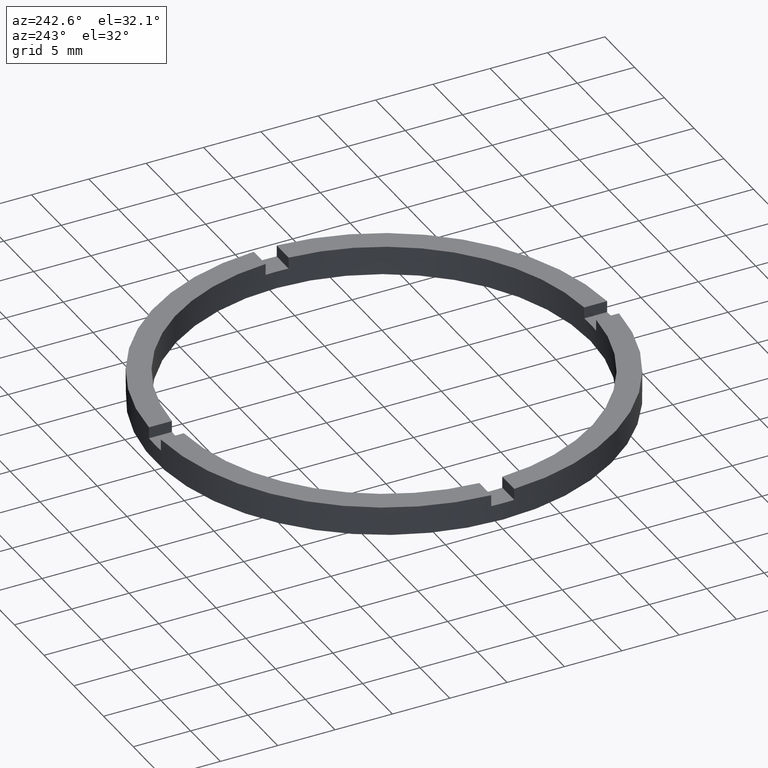
[diagram: clean part render]
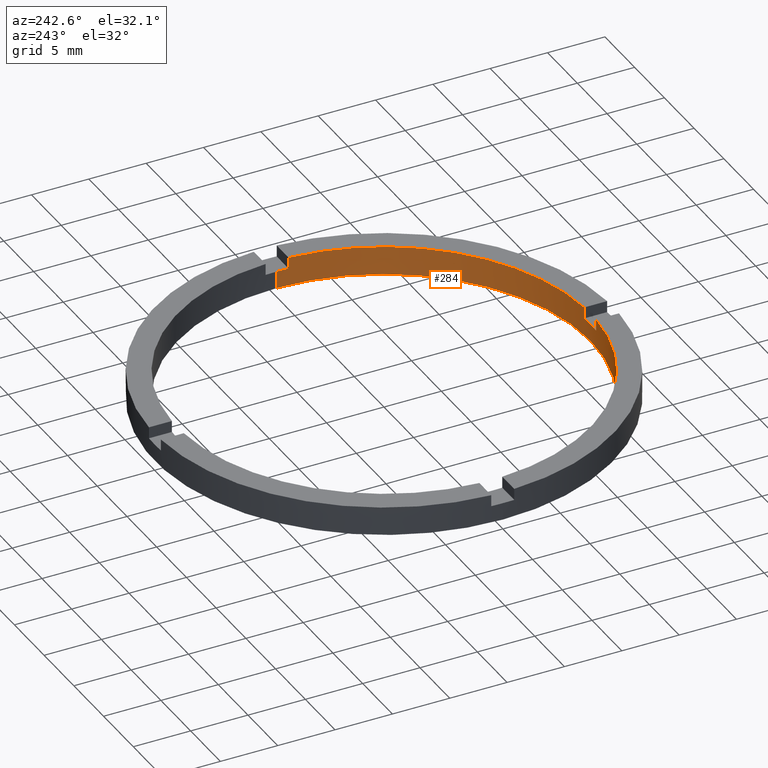
[diagram: same view with one face highlighted and labeled with its STEP entity id]
A machine part, auxiliary view. The second image highlights one B-rep face of the part: STEP entity #284.
In plain terms, the highlighted cylindrical surface (partial cylindrical patch) has radius 18 mm, axis along (-0, -0, -1).
Its self-contained STEP definition (entity closure, byte-faithful):
#10 = EDGE_CURVE ( 'NONE', #456, #740, #348, .T. ) ;
#17 = ORIENTED_EDGE ( 'NONE', *, *, #79, .F. ) ;
#29 = AXIS2_PLACEMENT_3D ( 'NONE', #415, #651, #95 ) ;
#32 = CARTESIAN_POINT ( 'NONE',  ( -1.000000000000160760, -17.97220075561141783, 2.500000000000000000 ) ) ;
#33 = DIRECTION ( 'NONE',  ( 1.000000000000000000, 0.000000000000000000, 0.000000000000000000 ) ) ;
#40 = CARTESIAN_POINT ( 'NONE',  ( 0.9999999999998393507, -17.97220075561143560, 1.500000000000000000 ) ) ;
#42 = CARTESIAN_POINT ( 'NONE',  ( -17.97220075561142849, -1.000000000000025313, 2.500000000000000000 ) ) ;
#69 = DIRECTION ( 'NONE',  ( -0.000000000000000000, -0.000000000000000000, -1.000000000000000000 ) ) ;
#79 = EDGE_CURVE ( 'NONE', #740, #223, #89, .T. ) ;
#86 = VECTOR ( 'NONE', #323, 1000.000000000000000 ) ;
#89 = CIRCLE ( 'NONE', #515, 18.00000000000000000 ) ;
#92 = VECTOR ( 'NONE', #220, 1000.000000000000000 ) ;
#95 = DIRECTION ( 'NONE',  ( 1.000000000000000000, 0.000000000000000000, 0.000000000000000000 ) ) ;
#98 = CARTESIAN_POINT ( 'NONE',  ( 0.000000000000000000, 0.000000000000000000, 2.500000000000000000 ) ) ;
#102 = ORIENTED_EDGE ( 'NONE', *, *, #10, .F. ) ;
#109 = ORIENTED_EDGE ( 'NONE', *, *, #352, .T. ) ;
#110 = CARTESIAN_POINT ( 'NONE',  ( 0.9999999999998393507, -17.97220075561143560, 2.500000000000000000 ) ) ;
#115 = DIRECTION ( 'NONE',  ( -1.000000000000000000, 0.000000000000000000, 0.000000000000000000 ) ) ;
#129 = EDGE_CURVE ( 'NONE', #209, #431, #609, .T. ) ;
#138 = VECTOR ( 'NONE', #340, 1000.000000000000000 ) ;
#152 = EDGE_CURVE ( 'NONE', #214, #435, #616, .T. ) ;
#156 = CARTESIAN_POINT ( 'NONE',  ( 0.000000000000000000, 0.000000000000000000, 2.500000000000000000 ) ) ;
#159 = LINE ( 'NONE', #318, #403 ) ;
#165 = DIRECTION ( 'NONE',  ( -0.000000000000000000, -0.000000000000000000, -1.000000000000000000 ) ) ;
#170 = CARTESIAN_POINT ( 'NONE',  ( 0.000000000000000000, 0.000000000000000000, 1.500000000000000000 ) ) ;
#172 = VERTEX_POINT ( 'NONE', #481 ) ;
#175 = VERTEX_POINT ( 'NONE', #110 ) ;
#179 = EDGE_LOOP ( 'NONE', ( #540, #109, #17, #102, #480, #212, #273, #541, #563, #384, #285, #283 ) ) ;
#192 = CARTESIAN_POINT ( 'NONE',  ( -18.00000000000000000, 0.000000000000000000, 0.000000000000000000 ) ) ;
#209 = VERTEX_POINT ( 'NONE', #306 ) ;
#212 = ORIENTED_EDGE ( 'NONE', *, *, #152, .F. ) ;
#214 = VERTEX_POINT ( 'NONE', #353 ) ;
#220 = DIRECTION ( 'NONE',  ( -0.000000000000000000, -0.000000000000000000, -1.000000000000000000 ) ) ;
#223 = VERTEX_POINT ( 'NONE', #603 ) ;
#234 = AXIS2_PLACEMENT_3D ( 'NONE', #170, #483, #531 ) ;
#240 = CARTESIAN_POINT ( 'NONE',  ( -18.00000000000000000, 0.000000000000000000, 2.500000000000000000 ) ) ;
#242 = DIRECTION ( 'NONE',  ( 0.000000000000000000, 0.000000000000000000, 1.000000000000000000 ) ) ;
#252 = CARTESIAN_POINT ( 'NONE',  ( 17.97220075561141783, -1.000000000000157208, 2.500000000000000000 ) ) ;
#273 = ORIENTED_EDGE ( 'NONE', *, *, #299, .T. ) ;
#283 = ORIENTED_EDGE ( 'NONE', *, *, #129, .F. ) ;
#284 = ADVANCED_FACE ( 'NONE', ( #346 ), #619, .F. ) ;
#285 = ORIENTED_EDGE ( 'NONE', *, *, #327, .T. ) ;
#292 = CARTESIAN_POINT ( 'NONE',  ( -1.000000000000160760, -17.97220075561141783, 2.500000000000000000 ) ) ;
#299 = EDGE_CURVE ( 'NONE', #214, #488, #375, .T. ) ;
#306 = CARTESIAN_POINT ( 'NONE',  ( 17.97220075561141783, -1.000000000000157208, 1.500000000000000000 ) ) ;
#318 = CARTESIAN_POINT ( 'NONE',  ( 0.9999999999998393507, -17.97220075561143560, 2.500000000000000000 ) ) ;
#323 = DIRECTION ( 'NONE',  ( -0.000000000000000000, -0.000000000000000000, -1.000000000000000000 ) ) ;
#327 = EDGE_CURVE ( 'NONE', #175, #431, #632, .T. ) ;
#328 = DIRECTION ( 'NONE',  ( 0.000000000000000000, 0.000000000000000000, 1.000000000000000000 ) ) ;
#334 = EDGE_CURVE ( 'NONE', #175, #552, #159, .T. ) ;
#340 = DIRECTION ( 'NONE',  ( 0.000000000000000000, 0.000000000000000000, 1.000000000000000000 ) ) ;
#342 = AXIS2_PLACEMENT_3D ( 'NONE', #729, #242, #737 ) ;
#346 = FACE_OUTER_BOUND ( 'NONE', #179, .T. ) ;
#348 = LINE ( 'NONE', #240, #86 ) ;
#352 = EDGE_CURVE ( 'NONE', #172, #223, #436, .T. ) ;
#353 = CARTESIAN_POINT ( 'NONE',  ( -17.97220075561142849, -1.000000000000025313, 2.500000000000000000 ) ) ;
#375 = CIRCLE ( 'NONE', #464, 18.00000000000000000 ) ;
#382 = AXIS2_PLACEMENT_3D ( 'NONE', #98, #165, #115 ) ;
#384 = ORIENTED_EDGE ( 'NONE', *, *, #334, .F. ) ;
#392 = EDGE_CURVE ( 'NONE', #751, #552, #419, .T. ) ;
#396 = LINE ( 'NONE', #292, #138 ) ;
#403 = VECTOR ( 'NONE', #69, 1000.000000000000000 ) ;
#406 = VECTOR ( 'NONE', #584, 1000.000000000000000 ) ;
#414 = EDGE_CURVE ( 'NONE', #751, #488, #396, .T. ) ;
#415 = CARTESIAN_POINT ( 'NONE',  ( 0.000000000000000000, 0.000000000000000000, 1.500000000000000000 ) ) ;
#419 = CIRCLE ( 'NONE', #29, 18.00000000000000000 ) ;
#424 = CIRCLE ( 'NONE', #654, 18.00000000000000000 ) ;
#428 = EDGE_CURVE ( 'NONE', #209, #172, #681, .T. ) ;
#431 = VERTEX_POINT ( 'NONE', #647 ) ;
#435 = VERTEX_POINT ( 'NONE', #714 ) ;
#436 = LINE ( 'NONE', #634, #406 ) ;
#451 = DIRECTION ( 'NONE',  ( 1.000000000000000000, 0.000000000000000000, 0.000000000000000000 ) ) ;
#456 = VERTEX_POINT ( 'NONE', #549 ) ;
#464 = AXIS2_PLACEMENT_3D ( 'NONE', #156, #542, #652 ) ;
#480 = ORIENTED_EDGE ( 'NONE', *, *, #583, .T. ) ;
#481 = CARTESIAN_POINT ( 'NONE',  ( 18.00000000000000000, 2.204364238465235428E-15, 1.500000000000000000 ) ) ;
#483 = DIRECTION ( 'NONE',  ( 0.000000000000000000, 0.000000000000000000, 1.000000000000000000 ) ) ;
#488 = VERTEX_POINT ( 'NONE', #32 ) ;
#515 = AXIS2_PLACEMENT_3D ( 'NONE', #562, #604, #451 ) ;
#531 = DIRECTION ( 'NONE',  ( 1.000000000000000000, 0.000000000000000000, 0.000000000000000000 ) ) ;
#540 = ORIENTED_EDGE ( 'NONE', *, *, #428, .T. ) ;
#541 = ORIENTED_EDGE ( 'NONE', *, *, #414, .F. ) ;
#542 = DIRECTION ( 'NONE',  ( 0.000000000000000000, 0.000000000000000000, 1.000000000000000000 ) ) ;
#549 = CARTESIAN_POINT ( 'NONE',  ( -18.00000000000000000, 0.000000000000000000, 1.500000000000000000 ) ) ;
#552 = VERTEX_POINT ( 'NONE', #40 ) ;
#562 = CARTESIAN_POINT ( 'NONE',  ( 0.000000000000000000, 0.000000000000000000, 0.000000000000000000 ) ) ;
#563 = ORIENTED_EDGE ( 'NONE', *, *, #392, .T. ) ;
#583 = EDGE_CURVE ( 'NONE', #456, #435, #424, .T. ) ;
#584 = DIRECTION ( 'NONE',  ( -0.000000000000000000, -0.000000000000000000, -1.000000000000000000 ) ) ;
#596 = CARTESIAN_POINT ( 'NONE',  ( -1.000000000000160760, -17.97220075561141783, 1.500000000000000000 ) ) ;
#603 = CARTESIAN_POINT ( 'NONE',  ( 18.00000000000000000, 2.204364238465235428E-15, 0.000000000000000000 ) ) ;
#604 = DIRECTION ( 'NONE',  ( 0.000000000000000000, 0.000000000000000000, 1.000000000000000000 ) ) ;
#609 = LINE ( 'NONE', #252, #620 ) ;
#616 = LINE ( 'NONE', #42, #92 ) ;
#619 = CYLINDRICAL_SURFACE ( 'NONE', #382, 18.00000000000000000 ) ;
#620 = VECTOR ( 'NONE', #328, 1000.000000000000000 ) ;
#632 = CIRCLE ( 'NONE', #342, 18.00000000000000000 ) ;
#634 = CARTESIAN_POINT ( 'NONE',  ( 18.00000000000000000, 2.204364238465235428E-15, 2.500000000000000000 ) ) ;
#647 = CARTESIAN_POINT ( 'NONE',  ( 17.97220075561141783, -1.000000000000157208, 2.500000000000000000 ) ) ;
#651 = DIRECTION ( 'NONE',  ( -0.000000000000000000, 0.000000000000000000, 1.000000000000000000 ) ) ;
#652 = DIRECTION ( 'NONE',  ( 1.000000000000000000, 0.000000000000000000, 0.000000000000000000 ) ) ;
#654 = AXIS2_PLACEMENT_3D ( 'NONE', #694, #763, #33 ) ;
#681 = CIRCLE ( 'NONE', #234, 18.00000000000000000 ) ;
#694 = CARTESIAN_POINT ( 'NONE',  ( 0.000000000000000000, 0.000000000000000000, 1.500000000000000000 ) ) ;
#714 = CARTESIAN_POINT ( 'NONE',  ( -17.97220075561142849, -1.000000000000025313, 1.500000000000000000 ) ) ;
#729 = CARTESIAN_POINT ( 'NONE',  ( 0.000000000000000000, 0.000000000000000000, 2.500000000000000000 ) ) ;
#737 = DIRECTION ( 'NONE',  ( 1.000000000000000000, 0.000000000000000000, 0.000000000000000000 ) ) ;
#740 = VERTEX_POINT ( 'NONE', #192 ) ;
#751 = VERTEX_POINT ( 'NONE', #596 ) ;
#763 = DIRECTION ( 'NONE',  ( 0.000000000000000000, 0.000000000000000000, 1.000000000000000000 ) ) ;